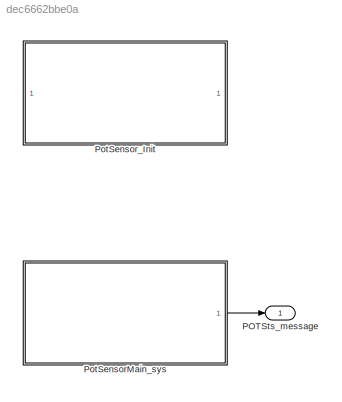
MODEL slx_dec6662bbe0a
KIND model
CONFIG AbsTol = auto
CONFIG EnableMultiTasking = off
CONFIG FixedStep = 0.01
CONFIG MaxStep = auto
CONFIG MinStep = auto
CONFIG RelTol = 1e-3
CONFIG SampleTimeConstraint = Unconstrained
CONFIG Solver = FixedStepDiscrete
CONFIG SolverName = FixedStepDiscrete
CONFIG StartTime = 0.0
CONFIG StopTime = 10.0
BLOCK [Outport] POTSts_message
  IconDisplay = Port number
  OutDataTypeStr = Int
  PortDimensions = 1
  SamplingMode = Sample based
  SignalType = real
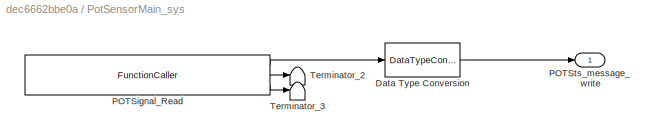
BLOCK [SubSystem] PotSensorMain_sys
  Ports = [0, 1]
  RequestExecContextInheritance = off
  SystemSampleTime = 0.01
  TreatAsAtomicUnit = on
BLOCK [DataTypeConversion] PotSensorMain_sys/Data Type Conversion
  RndMeth = Floor
  SaturateOnIntegerOverflow = off
BLOCK [FunctionCaller] PotSensorMain_sys/POTSignal_Read
  FunctionPrototype = [Value,Quality,ERR] = POTSignal_Read()
  OutputArgumentSpecifications = P_AnalogValue, SignalQuality(0), P_Std_ReturnType
  Ports = [0, 3]
BLOCK [Outport] PotSensorMain_sys/POTSts_message_write
  IconDisplay = Port number
BLOCK [Terminator] PotSensorMain_sys/Terminator_2
BLOCK [Terminator] PotSensorMain_sys/Terminator_3
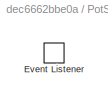
BLOCK [SubSystem] PotSensor_Init
  Ports = []
  RequestExecContextInheritance = off
BLOCK [EventListener] PotSensor_Init/Event Listener
  EventName = reset
LINE PotSensorMain_sys/Data Type Conversion:1 -> PotSensorMain_sys/POTSts_message_write:1
LINE PotSensorMain_sys/POTSignal_Read:1 -> PotSensorMain_sys/Data Type Conversion:1
LINE PotSensorMain_sys/POTSignal_Read:2 -> PotSensorMain_sys/Terminator_2:1
LINE PotSensorMain_sys/POTSignal_Read:3 -> PotSensorMain_sys/Terminator_3:1
LINE PotSensorMain_sys:1 -> POTSts_message:1
